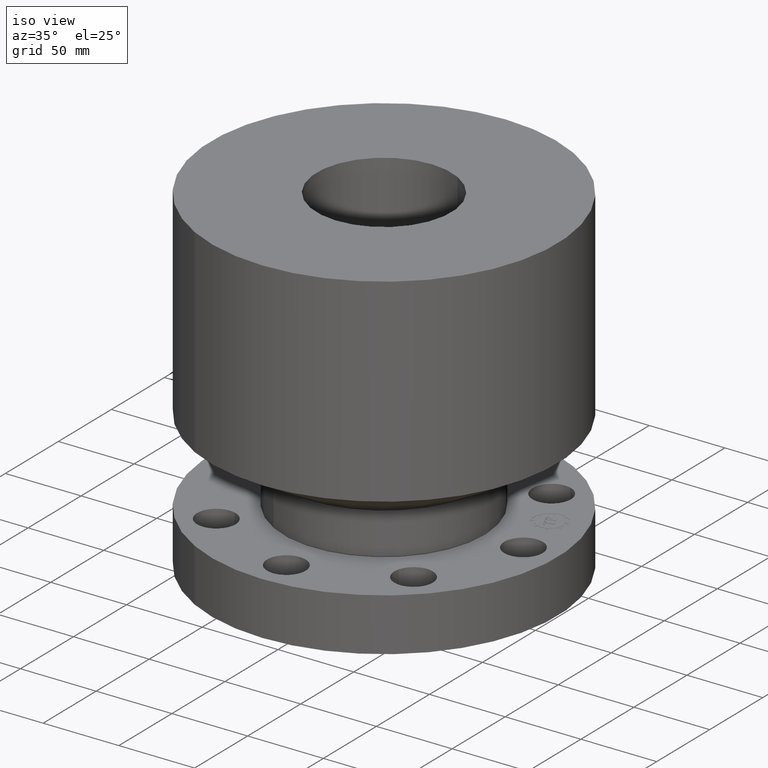
[diagram: clean part render]
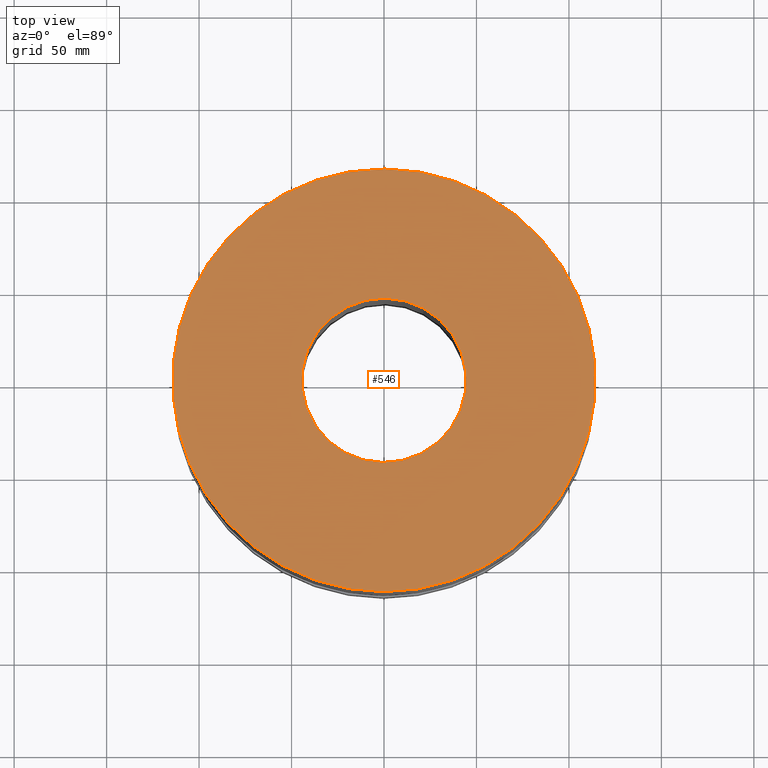
[diagram: tour spotlight — one face highlighted and labeled with its STEP entity id]
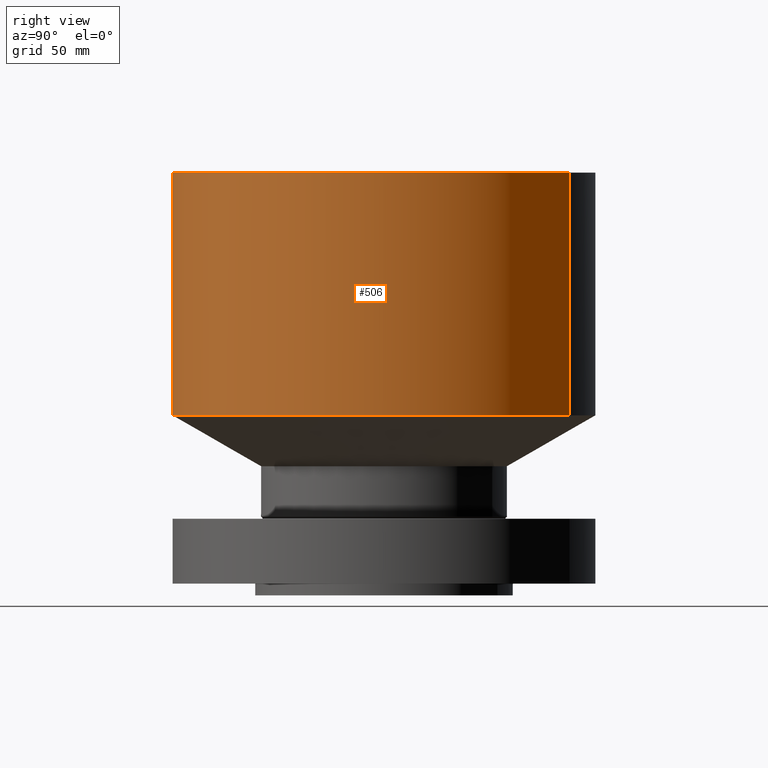
[diagram: tour spotlight — one face highlighted and labeled with its STEP entity id]
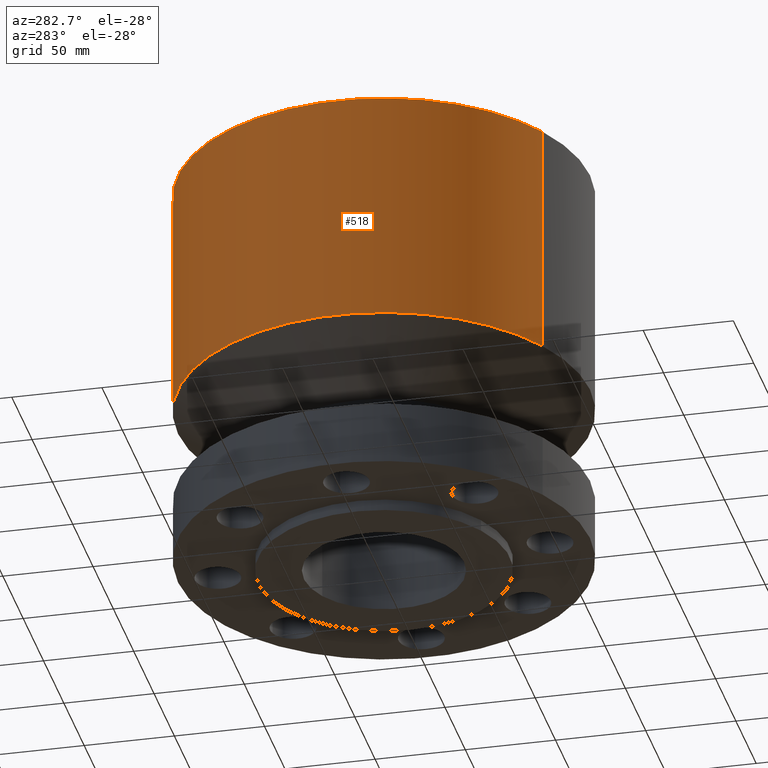
[diagram: tour spotlight — one face highlighted and labeled with its STEP entity id]
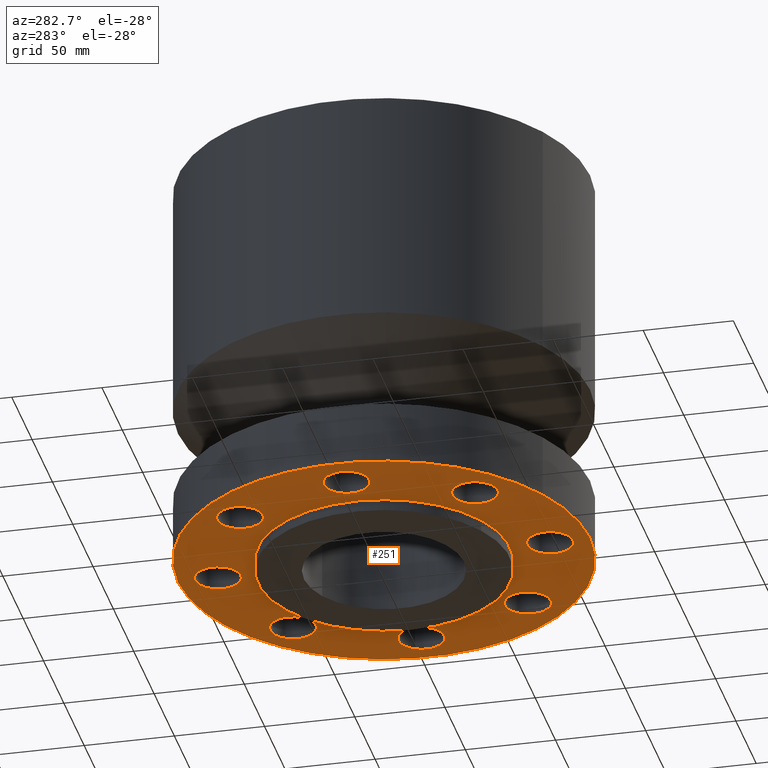
[diagram: tour spotlight — one face highlighted and labeled with its STEP entity id]
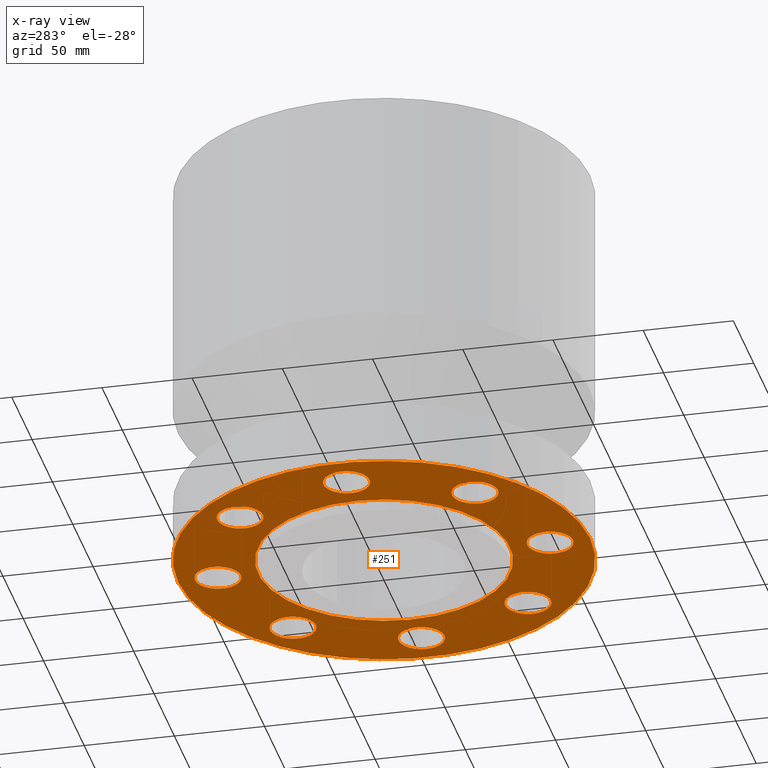
[diagram: x-ray of the same camera — body ghosted, this tour face saturated]
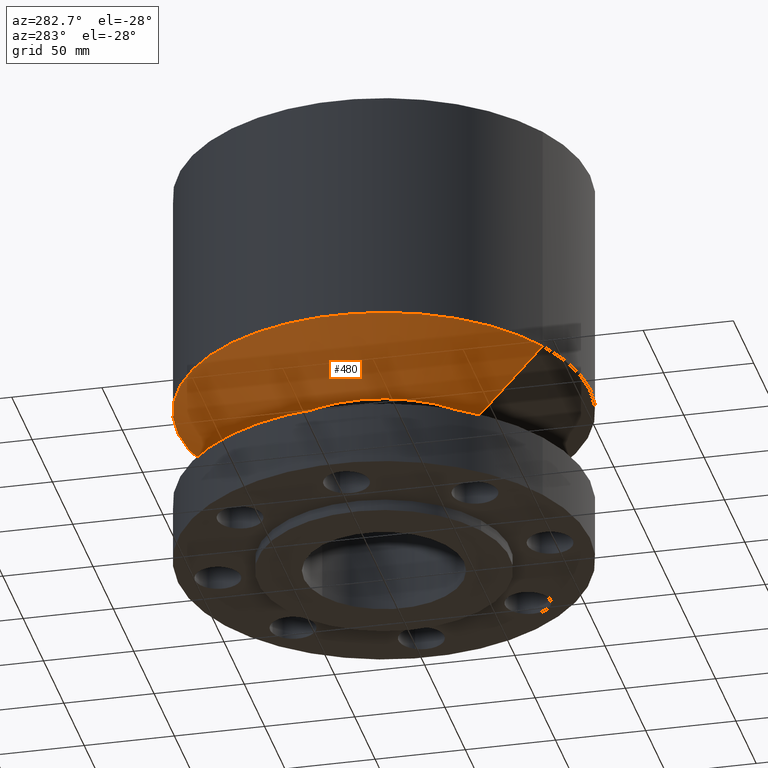
[diagram: tour spotlight — one face highlighted and labeled with its STEP entity id]
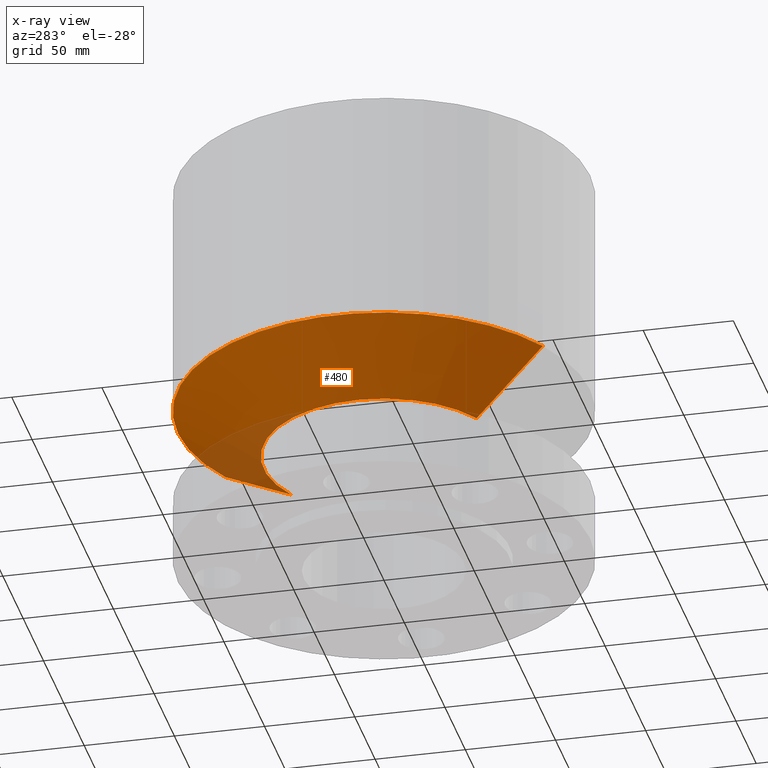
[diagram: x-ray of the same camera — body ghosted, this tour face saturated]
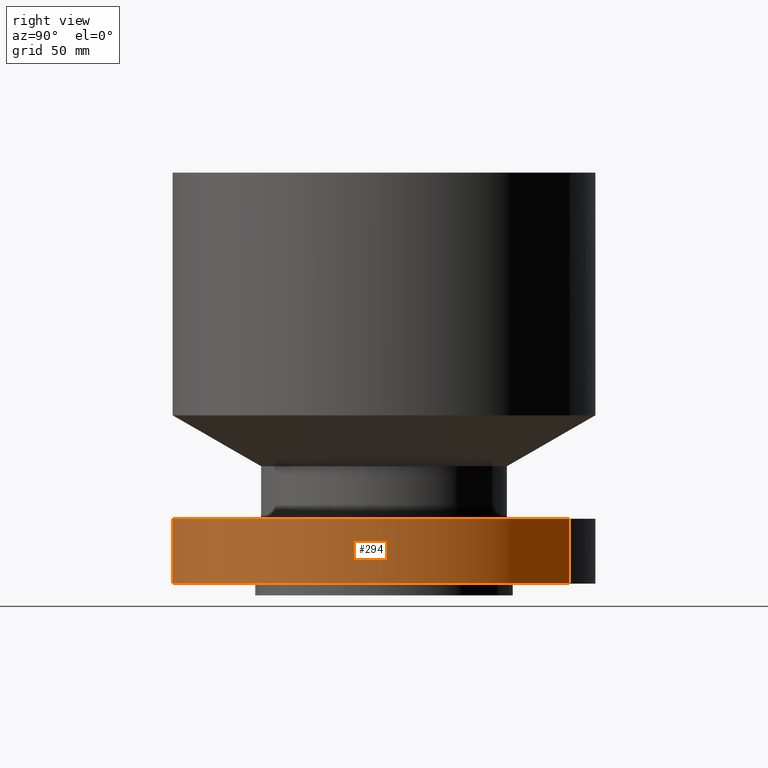
[diagram: tour spotlight — one face highlighted and labeled with its STEP entity id]
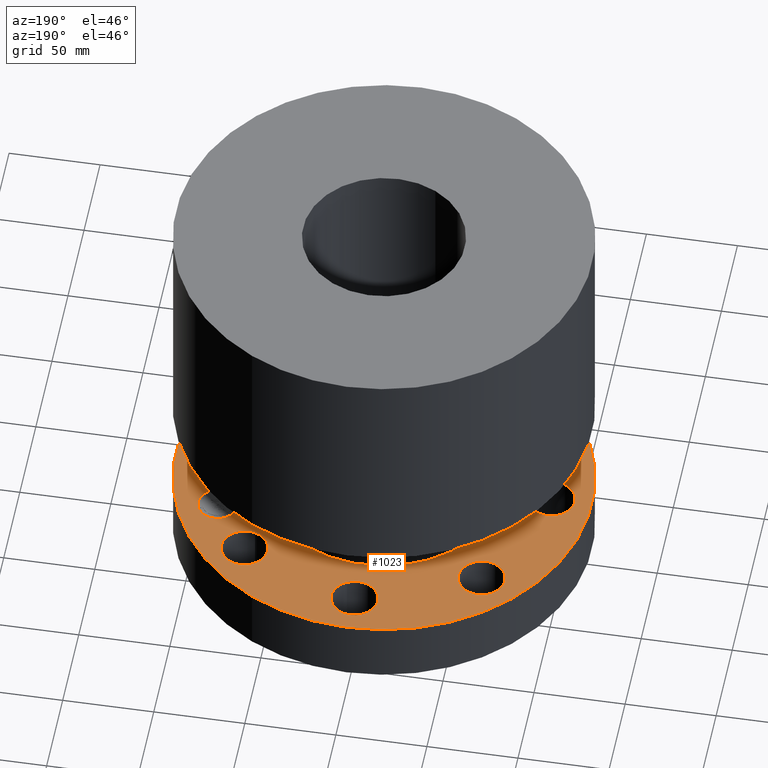
[diagram: tour spotlight — one face highlighted and labeled with its STEP entity id]
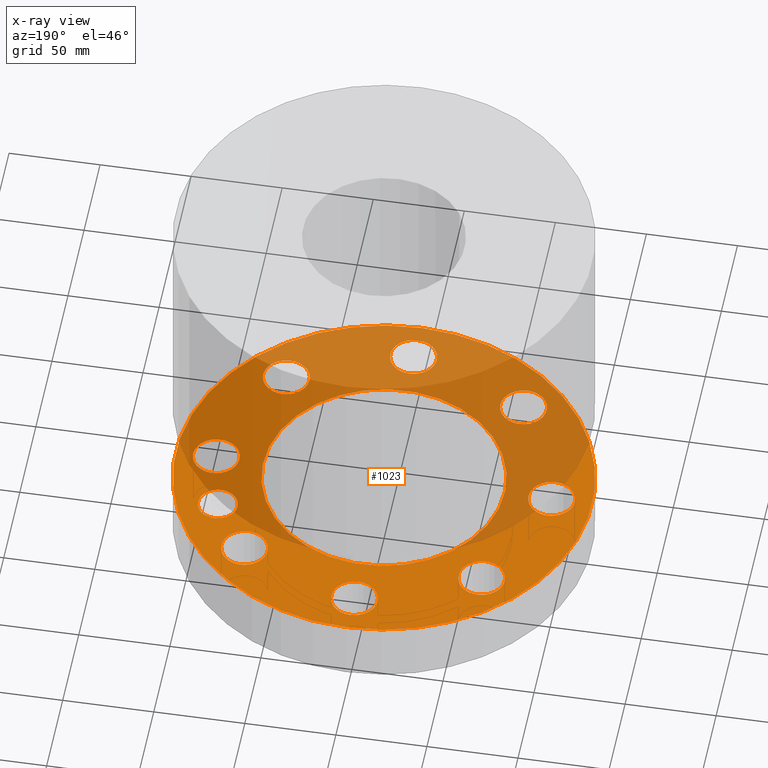
[diagram: x-ray of the same camera — body ghosted, this tour face saturated]
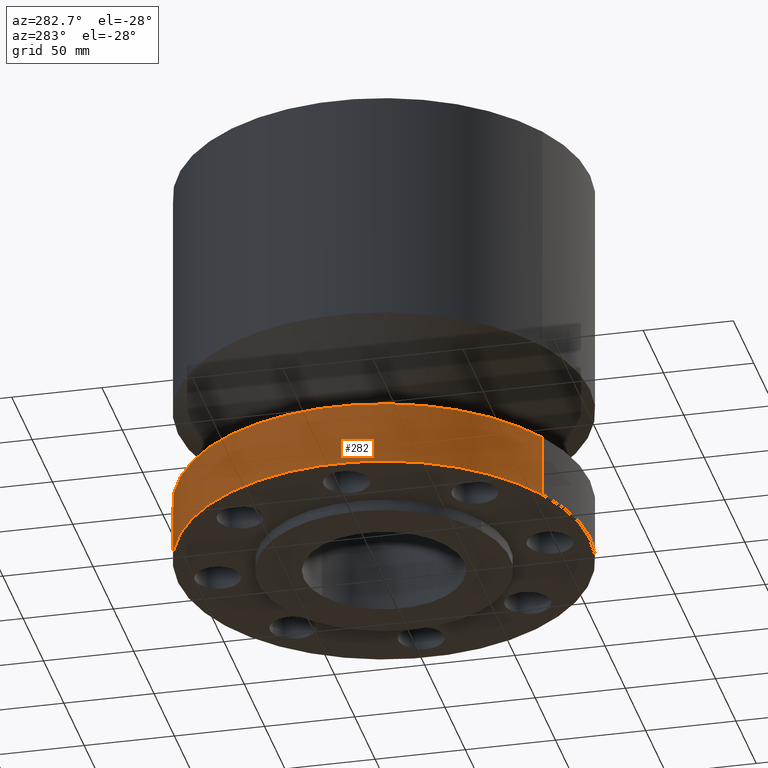
[diagram: tour spotlight — one face highlighted and labeled with its STEP entity id]
A machine part: a face-by-face anatomy tour. The part has 421 B-rep faces; the first image is the clean iso view, then the 8 largest visible faces are spotlighted one at a time (largest first), each with its STEP entity span.

Face 1 — top view, entity #546. In plain terms, the highlighted planar face has unit normal (0, 0, -1).
Definition (entity closure, byte-faithful):
#490=AXIS2_PLACEMENT_3D('Circle Axis2P3D',#488,#489,$) ;
#509=AXIS2_PLACEMENT_3D('Circle Axis2P3D',#507,#508,$) ;
#522=AXIS2_PLACEMENT_3D('Plane Axis2P3D',#519,#520,#521) ;
#530=AXIS2_PLACEMENT_3D('Circle Axis2P3D',#528,#529,$) ;
#539=AXIS2_PLACEMENT_3D('Circle Axis2P3D',#537,#538,$) ;
#485=CARTESIAN_POINT('Vertex',(2.15741492373,3.94912152852,8.75000000003)) ;
#488=CARTESIAN_POINT('Axis2P3D Location',(0.,0.,8.75000000003)) ;
#492=CARTESIAN_POINT('Vertex',(-2.15741492373,-3.94912152852,8.75000000003)) ;
#507=CARTESIAN_POINT('Axis2P3D Location',(0.,0.,8.75000000003)) ;
#519=CARTESIAN_POINT('Axis2P3D Location',(0.,4.50000000002,8.75000000003)) ;
#528=CARTESIAN_POINT('Axis2P3D Location',(0.,0.,8.75000000003)) ;
#532=CARTESIAN_POINT('Vertex',(-0.838994692561,-1.53576948331,8.75000000003)) ;
#534=CARTESIAN_POINT('Vertex',(0.838994692561,1.53576948331,8.75000000003)) ;
#537=CARTESIAN_POINT('Axis2P3D Location',(0.,0.,8.75000000003)) ;
#489=DIRECTION('Axis2P3D Direction',(0.,0.,-0.0393700787402)) ;
#508=DIRECTION('Axis2P3D Direction',(0.,0.,-0.0393700787402)) ;
#520=DIRECTION('Axis2P3D Direction',(0.,0.,-0.0393700787402)) ;
#521=DIRECTION('Axis2P3D XDirection',(0.0393700787402,0.,0.)) ;
#529=DIRECTION('Axis2P3D Direction',(0.,0.,-0.0393700787402)) ;
#538=DIRECTION('Axis2P3D Direction',(0.,0.,-0.0393700787402)) ;
#525=ORIENTED_EDGE('',*,*,#494,.F.) ;
#526=ORIENTED_EDGE('',*,*,#511,.F.) ;
#543=ORIENTED_EDGE('',*,*,#536,.T.) ;
#544=ORIENTED_EDGE('',*,*,#541,.T.) ;
#545=FACE_BOUND('',#542,.T.) ;
#546=ADVANCED_FACE('PartBody',(#527,#545),#523,.F.) ;
#491=CIRCLE('generated circle',#490,4.50000000002) ;
#510=CIRCLE('generated circle',#509,4.50000000002) ;
#531=CIRCLE('generated circle',#530,1.75000000001) ;
#540=CIRCLE('generated circle',#539,1.75000000001) ;
#494=EDGE_CURVE('',#486,#493,#491,.T.) ;
#511=EDGE_CURVE('',#493,#486,#510,.T.) ;
#536=EDGE_CURVE('',#533,#535,#531,.T.) ;
#541=EDGE_CURVE('',#535,#533,#540,.T.) ;
#524=EDGE_LOOP('',(#525,#526)) ;
#542=EDGE_LOOP('',(#543,#544)) ;
#527=FACE_OUTER_BOUND('',#524,.T.) ;
#523=PLANE('',#522) ;
#486=VERTEX_POINT('',#485) ;
#493=VERTEX_POINT('',#492) ;
#533=VERTEX_POINT('',#532) ;
#535=VERTEX_POINT('',#534) ;

Face 2 — right view, entity #506. In plain terms, the highlighted cylindrical surface (partial cylindrical patch) has radius 114.3 mm, axis along (0, 0, -1).
Definition (entity closure, byte-faithful):
#255=AXIS2_PLACEMENT_3D('Cylinder Axis2P3D',#252,#253,#254) ;
#452=AXIS2_PLACEMENT_3D('Circle Axis2P3D',#450,#451,$) ;
#490=AXIS2_PLACEMENT_3D('Circle Axis2P3D',#488,#489,$) ;
#252=CARTESIAN_POINT('Axis2P3D Location',(0.,0.,4.25000000002)) ;
#447=CARTESIAN_POINT('Vertex',(2.15741492373,3.94912152852,3.58253175474)) ;
#450=CARTESIAN_POINT('Axis2P3D Location',(0.,0.,3.58253175474)) ;
#454=CARTESIAN_POINT('Vertex',(-2.15741492373,-3.94912152852,3.58253175474)) ;
#481=CARTESIAN_POINT('Line Origine',(2.15741492373,3.94912152852,6.16626587739)) ;
#485=CARTESIAN_POINT('Vertex',(2.15741492373,3.94912152852,8.75000000003)) ;
#488=CARTESIAN_POINT('Axis2P3D Location',(0.,0.,8.75000000003)) ;
#492=CARTESIAN_POINT('Vertex',(-2.15741492373,-3.94912152852,8.75000000003)) ;
#495=CARTESIAN_POINT('Line Origine',(-2.15741492373,-3.94912152852,6.16626587739)) ;
#253=DIRECTION('Axis2P3D Direction',(0.,0.,-0.0393700787402)) ;
#254=DIRECTION('Axis2P3D XDirection',(-0.0188750212049,-0.0345504945626,0.)) ;
#451=DIRECTION('Axis2P3D Direction',(-0.,0.,0.0393700787402)) ;
#482=DIRECTION('Vector Direction',(0.,0.,-0.0393700787402)) ;
#489=DIRECTION('Axis2P3D Direction',(0.,0.,-0.0393700787402)) ;
#496=DIRECTION('Vector Direction',(0.,0.,-0.0393700787402)) ;
#483=VECTOR('Line Direction',#482,0.0393700787402) ;
#497=VECTOR('Line Direction',#496,0.0393700787402) ;
#501=ORIENTED_EDGE('',*,*,#456,.F.) ;
#502=ORIENTED_EDGE('',*,*,#487,.T.) ;
#503=ORIENTED_EDGE('',*,*,#494,.T.) ;
#504=ORIENTED_EDGE('',*,*,#499,.F.) ;
#506=ADVANCED_FACE('PartBody',(#505),#256,.T.) ;
#453=CIRCLE('generated circle',#452,4.50000000002) ;
#491=CIRCLE('generated circle',#490,4.50000000002) ;
#256=CYLINDRICAL_SURFACE('generated cylinder',#255,4.50000000002) ;
#456=EDGE_CURVE('',#448,#455,#453,.F.) ;
#487=EDGE_CURVE('',#448,#486,#484,.F.) ;
#494=EDGE_CURVE('',#486,#493,#491,.T.) ;
#499=EDGE_CURVE('',#455,#493,#498,.F.) ;
#500=EDGE_LOOP('',(#501,#502,#503,#504)) ;
#505=FACE_OUTER_BOUND('',#500,.T.) ;
#484=LINE('Line',#481,#483) ;
#498=LINE('Line',#495,#497) ;
#448=VERTEX_POINT('',#447) ;
#455=VERTEX_POINT('',#454) ;
#486=VERTEX_POINT('',#485) ;
#493=VERTEX_POINT('',#492) ;

Face 3 — auxiliary view, entity #518. In plain terms, the highlighted cylindrical surface (partial cylindrical patch) has radius 114.3 mm, axis along (0, 0, -1).
Definition (entity closure, byte-faithful):
#255=AXIS2_PLACEMENT_3D('Cylinder Axis2P3D',#252,#253,#254) ;
#471=AXIS2_PLACEMENT_3D('Circle Axis2P3D',#469,#470,$) ;
#509=AXIS2_PLACEMENT_3D('Circle Axis2P3D',#507,#508,$) ;
#252=CARTESIAN_POINT('Axis2P3D Location',(0.,0.,4.25000000002)) ;
#447=CARTESIAN_POINT('Vertex',(2.15741492373,3.94912152852,3.58253175474)) ;
#454=CARTESIAN_POINT('Vertex',(-2.15741492373,-3.94912152852,3.58253175474)) ;
#469=CARTESIAN_POINT('Axis2P3D Location',(0.,0.,3.58253175474)) ;
#481=CARTESIAN_POINT('Line Origine',(2.15741492373,3.94912152852,6.16626587739)) ;
#485=CARTESIAN_POINT('Vertex',(2.15741492373,3.94912152852,8.75000000003)) ;
#492=CARTESIAN_POINT('Vertex',(-2.15741492373,-3.94912152852,8.75000000003)) ;
#495=CARTESIAN_POINT('Line Origine',(-2.15741492373,-3.94912152852,6.16626587739)) ;
#507=CARTESIAN_POINT('Axis2P3D Location',(0.,0.,8.75000000003)) ;
#253=DIRECTION('Axis2P3D Direction',(0.,0.,-0.0393700787402)) ;
#254=DIRECTION('Axis2P3D XDirection',(-0.0188750212049,-0.0345504945626,0.)) ;
#470=DIRECTION('Axis2P3D Direction',(-0.,0.,0.0393700787402)) ;
#482=DIRECTION('Vector Direction',(0.,0.,-0.0393700787402)) ;
#496=DIRECTION('Vector Direction',(0.,0.,-0.0393700787402)) ;
#508=DIRECTION('Axis2P3D Direction',(0.,0.,-0.0393700787402)) ;
#483=VECTOR('Line Direction',#482,0.0393700787402) ;
#497=VECTOR('Line Direction',#496,0.0393700787402) ;
#513=ORIENTED_EDGE('',*,*,#473,.F.) ;
#514=ORIENTED_EDGE('',*,*,#499,.T.) ;
#515=ORIENTED_EDGE('',*,*,#511,.T.) ;
#516=ORIENTED_EDGE('',*,*,#487,.F.) ;
#518=ADVANCED_FACE('PartBody',(#517),#256,.T.) ;
#472=CIRCLE('generated circle',#471,4.50000000002) ;
#510=CIRCLE('generated circle',#509,4.50000000002) ;
#256=CYLINDRICAL_SURFACE('generated cylinder',#255,4.50000000002) ;
#473=EDGE_CURVE('',#455,#448,#472,.F.) ;
#487=EDGE_CURVE('',#448,#486,#484,.F.) ;
#499=EDGE_CURVE('',#455,#493,#498,.F.) ;
#511=EDGE_CURVE('',#493,#486,#510,.T.) ;
#512=EDGE_LOOP('',(#513,#514,#515,#516)) ;
#517=FACE_OUTER_BOUND('',#512,.T.) ;
#484=LINE('Line',#481,#483) ;
#498=LINE('Line',#495,#497) ;
#448=VERTEX_POINT('',#447) ;
#455=VERTEX_POINT('',#454) ;
#486=VERTEX_POINT('',#485) ;
#493=VERTEX_POINT('',#492) ;

Face 4 — auxiliary view, entity #251. An x-ray twin of the same camera follows (body ghosted, this face saturated) — the face is partly hidden behind the body. In plain terms, the highlighted planar face has unit normal (0, 0, -1).
Definition (entity closure, byte-faithful):
#51=AXIS2_PLACEMENT_3D('Circle Axis2P3D',#49,#50,$) ;
#78=AXIS2_PLACEMENT_3D('Plane Axis2P3D',#75,#76,#77) ;
#82=AXIS2_PLACEMENT_3D('Circle Axis2P3D',#80,#81,$) ;
#91=AXIS2_PLACEMENT_3D('Circle Axis2P3D',#89,#90,$) ;
#100=AXIS2_PLACEMENT_3D('Circle Axis2P3D',#98,#99,$) ;
#109=AXIS2_PLACEMENT_3D('Circle Axis2P3D',#107,#108,$) ;
#118=AXIS2_PLACEMENT_3D('Circle Axis2P3D',#116,#117,$) ;
#127=AXIS2_PLACEMENT_3D('Circle Axis2P3D',#125,#126,$) ;
#136=AXIS2_PLACEMENT_3D('Circle Axis2P3D',#134,#135,$) ;
#145=AXIS2_PLACEMENT_3D('Circle Axis2P3D',#143,#144,$) ;
#154=AXIS2_PLACEMENT_3D('Circle Axis2P3D',#152,#153,$) ;
#163=AXIS2_PLACEMENT_3D('Circle Axis2P3D',#161,#162,$) ;
#172=AXIS2_PLACEMENT_3D('Circle Axis2P3D',#170,#171,$) ;
#181=AXIS2_PLACEMENT_3D('Circle Axis2P3D',#179,#180,$) ;
#190=AXIS2_PLACEMENT_3D('Circle Axis2P3D',#188,#189,$) ;
#199=AXIS2_PLACEMENT_3D('Circle Axis2P3D',#197,#198,$) ;
#208=AXIS2_PLACEMENT_3D('Circle Axis2P3D',#206,#207,$) ;
#217=AXIS2_PLACEMENT_3D('Circle Axis2P3D',#215,#216,$) ;
#226=AXIS2_PLACEMENT_3D('Circle Axis2P3D',#224,#225,$) ;
#235=AXIS2_PLACEMENT_3D('Circle Axis2P3D',#233,#234,$) ;
#244=AXIS2_PLACEMENT_3D('Circle Axis2P3D',#242,#243,$) ;
#46=CARTESIAN_POINT('Vertex',(4.06379128096,0.239712769303,2.2401153548E-016)) ;
#49=CARTESIAN_POINT('Axis2P3D Location',(3.62500000001,0.,0.)) ;
#53=CARTESIAN_POINT('Vertex',(3.18620871907,-0.239712769303,2.2401153548E-016)) ;
#75=CARTESIAN_POINT('Axis2P3D Location',(0.,2.75000000001,0.)) ;
#80=CARTESIAN_POINT('Axis2P3D Location',(0.,0.,0.)) ;
#84=CARTESIAN_POINT('Vertex',(-2.15741492373,-3.94912152852,5.59482469102E-016)) ;
#86=CARTESIAN_POINT('Vertex',(2.15741492373,3.94912152852,5.59482469102E-016)) ;
#89=CARTESIAN_POINT('Axis2P3D Location',(0.,0.,0.)) ;
#98=CARTESIAN_POINT('Axis2P3D Location',(3.62500000001,0.,0.)) ;
#107=CARTESIAN_POINT('Axis2P3D Location',(0.,0.,0.)) ;
#111=CARTESIAN_POINT('Vertex',(1.31842023117,2.41335204521,5.59482469102E-016)) ;
#113=CARTESIAN_POINT('Vertex',(-1.31842023117,-2.41335204521,5.59482469102E-016)) ;
#116=CARTESIAN_POINT('Axis2P3D Location',(0.,0.,0.)) ;
#125=CARTESIAN_POINT('Axis2P3D Location',(2.56326208181,-2.56326208181,0.)) ;
#129=CARTESIAN_POINT('Vertex',(3.04303689681,-2.70403184738,0.)) ;
#131=CARTESIAN_POINT('Vertex',(2.08348726682,-2.42249231624,0.)) ;
#134=CARTESIAN_POINT('Axis2P3D Location',(2.56326208181,-2.56326208181,0.)) ;
#143=CARTESIAN_POINT('Axis2P3D Location',(6.99353086378E-017,-3.62500000001,0.)) ;
#147=CARTESIAN_POINT('Vertex',(0.239712769303,-4.06379128096,0.)) ;
#149=CARTESIAN_POINT('Vertex',(-0.239712769303,-3.18620871907,0.)) ;
#152=CARTESIAN_POINT('Axis2P3D Location',(6.99353086378E-016,-3.62500000001,0.)) ;
#161=CARTESIAN_POINT('Axis2P3D Location',(-2.56326208181,-2.56326208181,0.)) ;
#165=CARTESIAN_POINT('Vertex',(-2.70403184738,-3.04303689681,0.)) ;
#167=CARTESIAN_POINT('Vertex',(-2.42249231624,-2.08348726682,0.)) ;
#170=CARTESIAN_POINT('Axis2P3D Location',(-2.56326208181,-2.56326208181,0.)) ;
#179=CARTESIAN_POINT('Axis2P3D Location',(-3.62500000001,0.,0.)) ;
#183=CARTESIAN_POINT('Vertex',(-4.06379128096,-0.239712769303,0.)) ;
#185=CARTESIAN_POINT('Vertex',(-3.18620871907,0.239712769303,0.)) ;
#188=CARTESIAN_POINT('Axis2P3D Location',(-3.62500000001,-5.59482469102E-016,0.)) ;
#197=CARTESIAN_POINT('Axis2P3D Location',(-2.56326208181,2.56326208181,0.)) ;
#201=CARTESIAN_POINT('Vertex',(-3.04303689681,2.70403184738,0.)) ;
#203=CARTESIAN_POINT('Vertex',(-2.08348726682,2.42249231624,0.)) ;
#206=CARTESIAN_POINT('Axis2P3D Location',(-2.56326208181,2.56326208181,0.)) ;
#215=CARTESIAN_POINT('Axis2P3D Location',(-8.39223703654E-016,3.62500000001,0.)) ;
#219=CARTESIAN_POINT('Vertex',(-0.239712769303,4.06379128096,0.)) ;
#221=CARTESIAN_POINT('Vertex',(0.239712769303,3.18620871907,0.)) ;
#224=CARTESIAN_POINT('Axis2P3D Location',(-7.69288395016E-016,3.62500000001,0.)) ;
#233=CARTESIAN_POINT('Axis2P3D Location',(2.56326208181,2.56326208181,0.)) ;
#237=CARTESIAN_POINT('Vertex',(2.70403184738,3.04303689681,0.)) ;
#239=CARTESIAN_POINT('Vertex',(2.42249231624,2.08348726682,0.)) ;
#242=CARTESIAN_POINT('Axis2P3D Location',(2.56326208181,2.56326208181,0.)) ;
#50=DIRECTION('Axis2P3D Direction',(0.,-0.,0.0393700787402)) ;
#76=DIRECTION('Axis2P3D Direction',(0.,0.,-0.0393700787402)) ;
#77=DIRECTION('Axis2P3D XDirection',(0.0393700787402,0.,0.)) ;
#81=DIRECTION('Axis2P3D Direction',(0.,0.,-0.0393700787402)) ;
#90=DIRECTION('Axis2P3D Direction',(0.,0.,-0.0393700787402)) ;
#99=DIRECTION('Axis2P3D Direction',(0.,0.,-0.0393700787402)) ;
#108=DIRECTION('Axis2P3D Direction',(0.,0.,-0.0393700787402)) ;
#117=DIRECTION('Axis2P3D Direction',(0.,0.,-0.0393700787402)) ;
#126=DIRECTION('Axis2P3D Direction',(0.,0.,-0.0393700787402)) ;
#135=DIRECTION('Axis2P3D Direction',(0.,0.,-0.0393700787402)) ;
#144=DIRECTION('Axis2P3D Direction',(0.,0.,-0.0393700787402)) ;
#153=DIRECTION('Axis2P3D Direction',(0.,0.,-0.0393700787402)) ;
#162=DIRECTION('Axis2P3D Direction',(0.,0.,-0.0393700787402)) ;
#171=DIRECTION('Axis2P3D Direction',(0.,0.,-0.0393700787402)) ;
#180=DIRECTION('Axis2P3D Direction',(0.,0.,-0.0393700787402)) ;
#189=DIRECTION('Axis2P3D Direction',(0.,0.,-0.0393700787402)) ;
#198=DIRECTION('Axis2P3D Direction',(0.,0.,-0.0393700787402)) ;
#207=DIRECTION('Axis2P3D Direction',(0.,0.,-0.0393700787402)) ;
#216=DIRECTION('Axis2P3D Direction',(0.,0.,-0.0393700787402)) ;
#225=DIRECTION('Axis2P3D Direction',(0.,0.,-0.0393700787402)) ;
#234=DIRECTION('Axis2P3D Direction',(0.,0.,-0.0393700787402)) ;
#243=DIRECTION('Axis2P3D Direction',(0.,0.,-0.0393700787402)) ;
#95=ORIENTED_EDGE('',*,*,#88,.T.) ;
#96=ORIENTED_EDGE('',*,*,#93,.T.) ;
#104=ORIENTED_EDGE('',*,*,#102,.F.) ;
#105=ORIENTED_EDGE('',*,*,#55,.F.) ;
#122=ORIENTED_EDGE('',*,*,#115,.F.) ;
#123=ORIENTED_EDGE('',*,*,#120,.F.) ;
#140=ORIENTED_EDGE('',*,*,#133,.F.) ;
#141=ORIENTED_EDGE('',*,*,#138,.F.) ;
#158=ORIENTED_EDGE('',*,*,#151,.F.) ;
#159=ORIENTED_EDGE('',*,*,#156,.F.) ;
#176=ORIENTED_EDGE('',*,*,#169,.F.) ;
#177=ORIENTED_EDGE('',*,*,#174,.F.) ;
#194=ORIENTED_EDGE('',*,*,#187,.F.) ;
#195=ORIENTED_EDGE('',*,*,#192,.F.) ;
#212=ORIENTED_EDGE('',*,*,#205,.F.) ;
#213=ORIENTED_EDGE('',*,*,#210,.F.) ;
#230=ORIENTED_EDGE('',*,*,#223,.F.) ;
#231=ORIENTED_EDGE('',*,*,#228,.F.) ;
#248=ORIENTED_EDGE('',*,*,#241,.F.) ;
#249=ORIENTED_EDGE('',*,*,#246,.F.) ;
#106=FACE_BOUND('',#103,.T.) ;
#124=FACE_BOUND('',#121,.T.) ;
#142=FACE_BOUND('',#139,.T.) ;
#160=FACE_BOUND('',#157,.T.) ;
#178=FACE_BOUND('',#175,.T.) ;
#196=FACE_BOUND('',#193,.T.) ;
#214=FACE_BOUND('',#211,.T.) ;
#232=FACE_BOUND('',#229,.T.) ;
#250=FACE_BOUND('',#247,.T.) ;
#251=ADVANCED_FACE('PartBody',(#97,#106,#124,#142,#160,#178,#196,#214,#232,#250),#79,.T.) ;
#52=CIRCLE('generated circle',#51,0.500000000002) ;
#83=CIRCLE('generated circle',#82,4.50000000002) ;
#92=CIRCLE('generated circle',#91,4.50000000002) ;
#101=CIRCLE('generated circle',#100,0.500000000002) ;
#110=CIRCLE('generated circle',#109,2.75000000001) ;
#119=CIRCLE('generated circle',#118,2.75000000001) ;
#128=CIRCLE('generated circle',#127,0.500000000002) ;
#137=CIRCLE('generated circle',#136,0.500000000002) ;
#146=CIRCLE('generated circle',#145,0.500000000002) ;
#155=CIRCLE('generated circle',#154,0.500000000002) ;
#164=CIRCLE('generated circle',#163,0.500000000002) ;
#173=CIRCLE('generated circle',#172,0.500000000002) ;
#182=CIRCLE('generated circle',#181,0.500000000002) ;
#191=CIRCLE('generated circle',#190,0.500000000002) ;
#200=CIRCLE('generated circle',#199,0.500000000002) ;
#209=CIRCLE('generated circle',#208,0.500000000002) ;
#218=CIRCLE('generated circle',#217,0.500000000002) ;
#227=CIRCLE('generated circle',#226,0.500000000002) ;
#236=CIRCLE('generated circle',#235,0.500000000002) ;
#245=CIRCLE('generated circle',#244,0.500000000002) ;
#55=EDGE_CURVE('',#47,#54,#52,.F.) ;
#88=EDGE_CURVE('',#85,#87,#83,.T.) ;
#93=EDGE_CURVE('',#87,#85,#92,.T.) ;
#102=EDGE_CURVE('',#54,#47,#101,.T.) ;
#115=EDGE_CURVE('',#112,#114,#110,.T.) ;
#120=EDGE_CURVE('',#114,#112,#119,.T.) ;
#133=EDGE_CURVE('',#130,#132,#128,.T.) ;
#138=EDGE_CURVE('',#132,#130,#137,.T.) ;
#151=EDGE_CURVE('',#148,#150,#146,.T.) ;
#156=EDGE_CURVE('',#150,#148,#155,.T.) ;
#169=EDGE_CURVE('',#166,#168,#164,.T.) ;
#174=EDGE_CURVE('',#168,#166,#173,.T.) ;
#187=EDGE_CURVE('',#184,#186,#182,.T.) ;
#192=EDGE_CURVE('',#186,#184,#191,.T.) ;
#205=EDGE_CURVE('',#202,#204,#200,.T.) ;
#210=EDGE_CURVE('',#204,#202,#209,.T.) ;
#223=EDGE_CURVE('',#220,#222,#218,.T.) ;
#228=EDGE_CURVE('',#222,#220,#227,.T.) ;
#241=EDGE_CURVE('',#238,#240,#236,.T.) ;
#246=EDGE_CURVE('',#240,#238,#245,.T.) ;
#94=EDGE_LOOP('',(#95,#96)) ;
#103=EDGE_LOOP('',(#104,#105)) ;
#121=EDGE_LOOP('',(#122,#123)) ;
#139=EDGE_LOOP('',(#140,#141)) ;
#157=EDGE_LOOP('',(#158,#159)) ;
#175=EDGE_LOOP('',(#176,#177)) ;
#193=EDGE_LOOP('',(#194,#195)) ;
#211=EDGE_LOOP('',(#212,#213)) ;
#229=EDGE_LOOP('',(#230,#231)) ;
#247=EDGE_LOOP('',(#248,#249)) ;
#97=FACE_OUTER_BOUND('',#94,.T.) ;
#79=PLANE('',#78) ;
#47=VERTEX_POINT('',#46) ;
#54=VERTEX_POINT('',#53) ;
#85=VERTEX_POINT('',#84) ;
#87=VERTEX_POINT('',#86) ;
#112=VERTEX_POINT('',#111) ;
#114=VERTEX_POINT('',#113) ;
#130=VERTEX_POINT('',#129) ;
#132=VERTEX_POINT('',#131) ;
#148=VERTEX_POINT('',#147) ;
#150=VERTEX_POINT('',#149) ;
#166=VERTEX_POINT('',#165) ;
#168=VERTEX_POINT('',#167) ;
#184=VERTEX_POINT('',#183) ;
#186=VERTEX_POINT('',#185) ;
#202=VERTEX_POINT('',#201) ;
#204=VERTEX_POINT('',#203) ;
#220=VERTEX_POINT('',#219) ;
#222=VERTEX_POINT('',#221) ;
#238=VERTEX_POINT('',#237) ;
#240=VERTEX_POINT('',#239) ;

Face 5 — auxiliary view, entity #480. An x-ray twin of the same camera follows (body ghosted, this face saturated) — the face is partly hidden behind the body. In plain terms, the highlighted conical surface has half-angle 60 deg.
Definition (entity closure, byte-faithful):
#428=AXIS2_PLACEMENT_3D('Circle Axis2P3D',#426,#427,$) ;
#441=AXIS2_PLACEMENT_3D('Cone Axis2P3D',#438,#439,#440) ;
#471=AXIS2_PLACEMENT_3D('Circle Axis2P3D',#469,#470,$) ;
#404=CARTESIAN_POINT('Vertex',(1.25849203884,2.30365422497,2.50000000001)) ;
#411=CARTESIAN_POINT('Vertex',(-1.25849203884,-2.30365422497,2.50000000001)) ;
#426=CARTESIAN_POINT('Axis2P3D Location',(0.,0.,2.50000000001)) ;
#438=CARTESIAN_POINT('Axis2P3D Location',(0.,0.,2.50000000001)) ;
#443=CARTESIAN_POINT('Line Origine',(1.70795348128,3.12638787675,3.04126587738)) ;
#447=CARTESIAN_POINT('Vertex',(2.15741492373,3.94912152852,3.58253175474)) ;
#454=CARTESIAN_POINT('Vertex',(-2.15741492373,-3.94912152852,3.58253175474)) ;
#457=CARTESIAN_POINT('Line Origine',(-1.70795348128,-3.12638787675,3.04126587738)) ;
#469=CARTESIAN_POINT('Axis2P3D Location',(0.,0.,3.58253175474)) ;
#427=DIRECTION('Axis2P3D Direction',(0.,0.,-0.0393700787402)) ;
#439=DIRECTION('Axis2P3D Direction',(-0.,-0.,0.0393700787402)) ;
#440=DIRECTION('Axis2P3D XDirection',(0.0188750212049,0.0345504945626,0.)) ;
#444=DIRECTION('Vector Direction',(0.0163462478604,0.0299216060045,0.0196850393701)) ;
#458=DIRECTION('Vector Direction',(-0.0163462478604,-0.0299216060045,0.0196850393701)) ;
#470=DIRECTION('Axis2P3D Direction',(-0.,0.,0.0393700787402)) ;
#445=VECTOR('Line Direction',#444,0.0393700787402) ;
#459=VECTOR('Line Direction',#458,0.0393700787402) ;
#475=ORIENTED_EDGE('',*,*,#430,.F.) ;
#476=ORIENTED_EDGE('',*,*,#461,.T.) ;
#477=ORIENTED_EDGE('',*,*,#473,.T.) ;
#478=ORIENTED_EDGE('',*,*,#449,.F.) ;
#480=ADVANCED_FACE('PartBody',(#479),#442,.T.) ;
#429=CIRCLE('generated circle',#428,2.62500000001) ;
#472=CIRCLE('generated circle',#471,4.50000000002) ;
#442=CONICAL_SURFACE('Cone',#441,2.62500000001,1.0471975512) ;
#430=EDGE_CURVE('',#412,#405,#429,.T.) ;
#449=EDGE_CURVE('',#405,#448,#446,.T.) ;
#461=EDGE_CURVE('',#412,#455,#460,.T.) ;
#473=EDGE_CURVE('',#455,#448,#472,.F.) ;
#474=EDGE_LOOP('',(#475,#476,#477,#478)) ;
#479=FACE_OUTER_BOUND('',#474,.T.) ;
#446=LINE('Line',#443,#445) ;
#460=LINE('Line',#457,#459) ;
#405=VERTEX_POINT('',#404) ;
#412=VERTEX_POINT('',#411) ;
#448=VERTEX_POINT('',#447) ;
#455=VERTEX_POINT('',#454) ;

Face 6 — right view, entity #294. In plain terms, the highlighted cylindrical surface (partial cylindrical patch) has radius 114.3 mm, axis along (0, 0, -1).
Definition (entity closure, byte-faithful):
#91=AXIS2_PLACEMENT_3D('Circle Axis2P3D',#89,#90,$) ;
#255=AXIS2_PLACEMENT_3D('Cylinder Axis2P3D',#252,#253,#254) ;
#285=AXIS2_PLACEMENT_3D('Circle Axis2P3D',#283,#284,$) ;
#84=CARTESIAN_POINT('Vertex',(-2.15741492373,-3.94912152852,5.59482469102E-016)) ;
#86=CARTESIAN_POINT('Vertex',(2.15741492373,3.94912152852,5.59482469102E-016)) ;
#89=CARTESIAN_POINT('Axis2P3D Location',(0.,0.,0.)) ;
#252=CARTESIAN_POINT('Axis2P3D Location',(0.,0.,4.25000000002)) ;
#257=CARTESIAN_POINT('Line Origine',(-2.15741492373,-3.94912152852,6.16626587739)) ;
#261=CARTESIAN_POINT('Vertex',(-2.15741492373,-3.94912152852,1.38000000001)) ;
#268=CARTESIAN_POINT('Vertex',(2.15741492373,3.94912152852,1.38000000001)) ;
#271=CARTESIAN_POINT('Line Origine',(2.15741492373,3.94912152852,6.16626587739)) ;
#283=CARTESIAN_POINT('Axis2P3D Location',(0.,0.,1.38000000001)) ;
#90=DIRECTION('Axis2P3D Direction',(0.,0.,-0.0393700787402)) ;
#253=DIRECTION('Axis2P3D Direction',(0.,0.,-0.0393700787402)) ;
#254=DIRECTION('Axis2P3D XDirection',(-0.0188750212049,-0.0345504945626,0.)) ;
#258=DIRECTION('Vector Direction',(0.,0.,-0.0393700787402)) ;
#272=DIRECTION('Vector Direction',(0.,0.,-0.0393700787402)) ;
#284=DIRECTION('Axis2P3D Direction',(0.,0.,-0.0393700787402)) ;
#259=VECTOR('Line Direction',#258,0.0393700787402) ;
#273=VECTOR('Line Direction',#272,0.0393700787402) ;
#289=ORIENTED_EDGE('',*,*,#93,.F.) ;
#290=ORIENTED_EDGE('',*,*,#275,.T.) ;
#291=ORIENTED_EDGE('',*,*,#287,.T.) ;
#292=ORIENTED_EDGE('',*,*,#263,.F.) ;
#294=ADVANCED_FACE('PartBody',(#293),#256,.T.) ;
#92=CIRCLE('generated circle',#91,4.50000000002) ;
#286=CIRCLE('generated circle',#285,4.50000000002) ;
#256=CYLINDRICAL_SURFACE('generated cylinder',#255,4.50000000002) ;
#93=EDGE_CURVE('',#87,#85,#92,.T.) ;
#263=EDGE_CURVE('',#85,#262,#260,.F.) ;
#275=EDGE_CURVE('',#87,#269,#274,.F.) ;
#287=EDGE_CURVE('',#269,#262,#286,.T.) ;
#288=EDGE_LOOP('',(#289,#290,#291,#292)) ;
#293=FACE_OUTER_BOUND('',#288,.T.) ;
#260=LINE('Line',#257,#259) ;
#274=LINE('Line',#271,#273) ;
#85=VERTEX_POINT('',#84) ;
#87=VERTEX_POINT('',#86) ;
#262=VERTEX_POINT('',#261) ;
#269=VERTEX_POINT('',#268) ;

Face 7 — auxiliary view, entity #1023. An x-ray twin of the same camera follows (body ghosted, this face saturated) — the face is partly hidden behind the body. In plain terms, the highlighted planar face has unit normal (0, 0, -1).
Definition (entity closure, byte-faithful):
#65=AXIS2_PLACEMENT_3D('Circle Axis2P3D',#63,#64,$) ;
#266=AXIS2_PLACEMENT_3D('Circle Axis2P3D',#264,#265,$) ;
#285=AXIS2_PLACEMENT_3D('Circle Axis2P3D',#283,#284,$) ;
#302=AXIS2_PLACEMENT_3D('Circle Axis2P3D',#300,#301,$) ;
#337=AXIS2_PLACEMENT_3D('Circle Axis2P3D',#335,#336,$) ;
#649=AXIS2_PLACEMENT_3D('Circle Axis2P3D',#647,#648,$) ;
#680=AXIS2_PLACEMENT_3D('Circle Axis2P3D',#678,#679,$) ;
#692=AXIS2_PLACEMENT_3D('Circle Axis2P3D',#690,#691,$) ;
#723=AXIS2_PLACEMENT_3D('Circle Axis2P3D',#721,#722,$) ;
#735=AXIS2_PLACEMENT_3D('Circle Axis2P3D',#733,#734,$) ;
#766=AXIS2_PLACEMENT_3D('Circle Axis2P3D',#764,#765,$) ;
#778=AXIS2_PLACEMENT_3D('Circle Axis2P3D',#776,#777,$) ;
#809=AXIS2_PLACEMENT_3D('Circle Axis2P3D',#807,#808,$) ;
#821=AXIS2_PLACEMENT_3D('Circle Axis2P3D',#819,#820,$) ;
#852=AXIS2_PLACEMENT_3D('Circle Axis2P3D',#850,#851,$) ;
#864=AXIS2_PLACEMENT_3D('Circle Axis2P3D',#862,#863,$) ;
#895=AXIS2_PLACEMENT_3D('Circle Axis2P3D',#893,#894,$) ;
#907=AXIS2_PLACEMENT_3D('Circle Axis2P3D',#905,#906,$) ;
#938=AXIS2_PLACEMENT_3D('Circle Axis2P3D',#936,#937,$) ;
#950=AXIS2_PLACEMENT_3D('Circle Axis2P3D',#948,#949,$) ;
#963=AXIS2_PLACEMENT_3D('Plane Axis2P3D',#960,#961,#962) ;
#1007=AXIS2_PLACEMENT_3D('Circle Axis2P3D',#1005,#1006,$) ;
#1016=AXIS2_PLACEMENT_3D('Circle Axis2P3D',#1014,#1015,$) ;
#44=CARTESIAN_POINT('Vertex',(4.06379128096,0.239712769303,1.38000000001)) ;
#60=CARTESIAN_POINT('Vertex',(3.18620871907,-0.239712769303,1.38000000001)) ;
#63=CARTESIAN_POINT('Axis2P3D Location',(3.62500000001,0.,1.38000000001)) ;
#261=CARTESIAN_POINT('Vertex',(-2.15741492373,-3.94912152852,1.38000000001)) ;
#264=CARTESIAN_POINT('Axis2P3D Location',(0.,0.,1.38000000001)) ;
#268=CARTESIAN_POINT('Vertex',(2.15741492373,3.94912152852,1.38000000001)) ;
#283=CARTESIAN_POINT('Axis2P3D Location',(0.,0.,1.38000000001)) ;
#300=CARTESIAN_POINT('Axis2P3D Location',(0.,0.,1.38000000001)) ;
#304=CARTESIAN_POINT('Vertex',(1.25130065576,2.29049048654,1.38000000001)) ;
#306=CARTESIAN_POINT('Vertex',(-1.25130065576,-2.29049048654,1.38000000001)) ;
#335=CARTESIAN_POINT('Axis2P3D Location',(0.,0.,1.38000000001)) ;
#647=CARTESIAN_POINT('Axis2P3D Location',(3.62500000001,0.,1.38000000001)) ;
#668=CARTESIAN_POINT('Vertex',(3.04303689681,-2.70403184738,1.38000000001)) ;
#675=CARTESIAN_POINT('Vertex',(2.08348726682,-2.42249231624,1.38000000001)) ;
#678=CARTESIAN_POINT('Axis2P3D Location',(2.56326208181,-2.56326208181,1.38000000001)) ;
#690=CARTESIAN_POINT('Axis2P3D Location',(2.56326208181,-2.56326208181,1.38000000001)) ;
#711=CARTESIAN_POINT('Vertex',(0.239712769303,-4.06379128096,1.38000000001)) ;
#718=CARTESIAN_POINT('Vertex',(-0.239712769303,-3.18620871907,1.38000000001)) ;
#721=CARTESIAN_POINT('Axis2P3D Location',(2.21967232346E-016,-3.62500000001,1.38000000001)) ;
#733=CARTESIAN_POINT('Axis2P3D Location',(2.21967232346E-016,-3.62500000001,1.38000000001)) ;
#754=CARTESIAN_POINT('Vertex',(-2.70403184738,-3.04303689681,1.38000000001)) ;
#761=CARTESIAN_POINT('Vertex',(-2.42249231624,-2.08348726682,1.38000000001)) ;
#764=CARTESIAN_POINT('Axis2P3D Location',(-2.56326208181,-2.56326208181,1.38000000001)) ;
#776=CARTESIAN_POINT('Axis2P3D Location',(-2.56326208181,-2.56326208181,1.38000000001)) ;
#797=CARTESIAN_POINT('Vertex',(-4.06379128096,-0.239712769303,1.38000000001)) ;
#804=CARTESIAN_POINT('Vertex',(-3.18620871907,0.239712769303,1.38000000001)) ;
#807=CARTESIAN_POINT('Axis2P3D Location',(-3.62500000001,-4.43934464693E-016,1.38000000001)) ;
#819=CARTESIAN_POINT('Axis2P3D Location',(-3.62500000001,-4.43934464693E-016,1.38000000001)) ;
#840=CARTESIAN_POINT('Vertex',(-3.04303689681,2.70403184738,1.38000000001)) ;
#847=CARTESIAN_POINT('Vertex',(-2.08348726682,2.42249231624,1.38000000001)) ;
#850=CARTESIAN_POINT('Axis2P3D Location',(-2.56326208181,2.56326208181,1.38000000001)) ;
#862=CARTESIAN_POINT('Axis2P3D Location',(-2.56326208181,2.56326208181,1.38000000001)) ;
#883=CARTESIAN_POINT('Vertex',(-0.239712769303,4.06379128096,1.38000000001)) ;
#890=CARTESIAN_POINT('Vertex',(0.239712769303,3.18620871907,1.38000000001)) ;
#893=CARTESIAN_POINT('Axis2P3D Location',(-6.65901697039E-016,3.62500000001,1.38000000001)) ;
#905=CARTESIAN_POINT('Axis2P3D Location',(-6.65901697039E-016,3.62500000001,1.38000000001)) ;
#926=CARTESIAN_POINT('Vertex',(2.70403184738,3.04303689681,1.38000000001)) ;
#933=CARTESIAN_POINT('Vertex',(2.42249231624,2.08348726682,1.38000000001)) ;
#936=CARTESIAN_POINT('Axis2P3D Location',(2.56326208181,2.56326208181,1.38000000001)) ;
#948=CARTESIAN_POINT('Axis2P3D Location',(2.56326208181,2.56326208181,1.38000000001)) ;
#960=CARTESIAN_POINT('Axis2P3D Location',(0.,4.50000000002,1.38000000001)) ;
#1005=CARTESIAN_POINT('Axis2P3D Location',(3.34906330537,1.38722744233,1.38000000001)) ;
#1009=CARTESIAN_POINT('Vertex',(3.5117037625,0.994578644937,1.38000000001)) ;
#1011=CARTESIAN_POINT('Vertex',(3.18642284824,1.77987623972,1.38000000001)) ;
#1014=CARTESIAN_POINT('Axis2P3D Location',(3.34906330537,1.38722744233,1.38000000001)) ;
#64=DIRECTION('Axis2P3D Direction',(0.,-0.,0.0393700787402)) ;
#265=DIRECTION('Axis2P3D Direction',(0.,0.,-0.0393700787402)) ;
#284=DIRECTION('Axis2P3D Direction',(0.,0.,-0.0393700787402)) ;
#301=DIRECTION('Axis2P3D Direction',(0.,0.,-0.0393700787402)) ;
#336=DIRECTION('Axis2P3D Direction',(0.,0.,-0.0393700787402)) ;
#648=DIRECTION('Axis2P3D Direction',(0.,-0.,0.0393700787402)) ;
#679=DIRECTION('Axis2P3D Direction',(-0.,0.,0.0393700787402)) ;
#691=DIRECTION('Axis2P3D Direction',(-0.,0.,0.0393700787402)) ;
#722=DIRECTION('Axis2P3D Direction',(-0.,0.,0.0393700787402)) ;
#734=DIRECTION('Axis2P3D Direction',(-0.,0.,0.0393700787402)) ;
#765=DIRECTION('Axis2P3D Direction',(0.,0.,0.0393700787402)) ;
#777=DIRECTION('Axis2P3D Direction',(0.,0.,0.0393700787402)) ;
#808=DIRECTION('Axis2P3D Direction',(0.,0.,0.0393700787402)) ;
#820=DIRECTION('Axis2P3D Direction',(0.,0.,0.0393700787402)) ;
#851=DIRECTION('Axis2P3D Direction',(0.,0.,0.0393700787402)) ;
#863=DIRECTION('Axis2P3D Direction',(0.,0.,0.0393700787402)) ;
#894=DIRECTION('Axis2P3D Direction',(0.,0.,0.0393700787402)) ;
#906=DIRECTION('Axis2P3D Direction',(0.,0.,0.0393700787402)) ;
#937=DIRECTION('Axis2P3D Direction',(0.,-0.,0.0393700787402)) ;
#949=DIRECTION('Axis2P3D Direction',(0.,-0.,0.0393700787402)) ;
#961=DIRECTION('Axis2P3D Direction',(0.,0.,-0.0393700787402)) ;
#962=DIRECTION('Axis2P3D XDirection',(0.0393700787402,0.,0.)) ;
#1006=DIRECTION('Axis2P3D Direction',(0.,0.,-0.0393700787402)) ;
#1015=DIRECTION('Axis2P3D Direction',(0.,0.,-0.0393700787402)) ;
#966=ORIENTED_EDGE('',*,*,#287,.F.) ;
#967=ORIENTED_EDGE('',*,*,#270,.F.) ;
#970=ORIENTED_EDGE('',*,*,#67,.T.) ;
#971=ORIENTED_EDGE('',*,*,#651,.T.) ;
#974=ORIENTED_EDGE('',*,*,#339,.T.) ;
#975=ORIENTED_EDGE('',*,*,#308,.T.) ;
#978=ORIENTED_EDGE('',*,*,#694,.T.) ;
#979=ORIENTED_EDGE('',*,*,#682,.T.) ;
#982=ORIENTED_EDGE('',*,*,#737,.T.) ;
#983=ORIENTED_EDGE('',*,*,#725,.T.) ;
#986=ORIENTED_EDGE('',*,*,#780,.T.) ;
#987=ORIENTED_EDGE('',*,*,#768,.T.) ;
#990=ORIENTED_EDGE('',*,*,#823,.T.) ;
#991=ORIENTED_EDGE('',*,*,#811,.T.) ;
#994=ORIENTED_EDGE('',*,*,#866,.T.) ;
#995=ORIENTED_EDGE('',*,*,#854,.T.) ;
#998=ORIENTED_EDGE('',*,*,#909,.T.) ;
#999=ORIENTED_EDGE('',*,*,#897,.T.) ;
#1002=ORIENTED_EDGE('',*,*,#952,.T.) ;
#1003=ORIENTED_EDGE('',*,*,#940,.T.) ;
#1020=ORIENTED_EDGE('',*,*,#1013,.F.) ;
#1021=ORIENTED_EDGE('',*,*,#1018,.F.) ;
#972=FACE_BOUND('',#969,.T.) ;
#976=FACE_BOUND('',#973,.T.) ;
#980=FACE_BOUND('',#977,.T.) ;
#984=FACE_BOUND('',#981,.T.) ;
#988=FACE_BOUND('',#985,.T.) ;
#992=FACE_BOUND('',#989,.T.) ;
#996=FACE_BOUND('',#993,.T.) ;
#1000=FACE_BOUND('',#997,.T.) ;
#1004=FACE_BOUND('',#1001,.T.) ;
#1022=FACE_BOUND('',#1019,.T.) ;
#1023=ADVANCED_FACE('PartBody',(#968,#972,#976,#980,#984,#988,#992,#996,#1000,#1004,#1022),#964,.F.) ;
#66=CIRCLE('generated circle',#65,0.500000000002) ;
#267=CIRCLE('generated circle',#266,4.50000000002) ;
#286=CIRCLE('generated circle',#285,4.50000000002) ;
#303=CIRCLE('generated circle',#302,2.61000000001) ;
#338=CIRCLE('generated circle',#337,2.61000000001) ;
#650=CIRCLE('generated circle',#649,0.500000000002) ;
#681=CIRCLE('generated circle',#680,0.500000000002) ;
#693=CIRCLE('generated circle',#692,0.500000000002) ;
#724=CIRCLE('generated circle',#723,0.500000000002) ;
#736=CIRCLE('generated circle',#735,0.500000000002) ;
#767=CIRCLE('generated circle',#766,0.500000000002) ;
#779=CIRCLE('generated circle',#778,0.500000000002) ;
#810=CIRCLE('generated circle',#809,0.500000000002) ;
#822=CIRCLE('generated circle',#821,0.500000000002) ;
#853=CIRCLE('generated circle',#852,0.500000000002) ;
#865=CIRCLE('generated circle',#864,0.500000000002) ;
#896=CIRCLE('generated circle',#895,0.500000000002) ;
#908=CIRCLE('generated circle',#907,0.500000000002) ;
#939=CIRCLE('generated circle',#938,0.500000000002) ;
#951=CIRCLE('generated circle',#950,0.500000000002) ;
#1008=CIRCLE('generated circle',#1007,0.424999995752) ;
#1017=CIRCLE('generated circle',#1016,0.424999995752) ;
#67=EDGE_CURVE('',#45,#61,#66,.F.) ;
#270=EDGE_CURVE('',#262,#269,#267,.T.) ;
#287=EDGE_CURVE('',#269,#262,#286,.T.) ;
#308=EDGE_CURVE('',#305,#307,#303,.T.) ;
#339=EDGE_CURVE('',#307,#305,#338,.T.) ;
#651=EDGE_CURVE('',#61,#45,#650,.F.) ;
#682=EDGE_CURVE('',#669,#676,#681,.F.) ;
#694=EDGE_CURVE('',#676,#669,#693,.F.) ;
#725=EDGE_CURVE('',#712,#719,#724,.F.) ;
#737=EDGE_CURVE('',#719,#712,#736,.F.) ;
#768=EDGE_CURVE('',#755,#762,#767,.F.) ;
#780=EDGE_CURVE('',#762,#755,#779,.F.) ;
#811=EDGE_CURVE('',#798,#805,#810,.F.) ;
#823=EDGE_CURVE('',#805,#798,#822,.F.) ;
#854=EDGE_CURVE('',#841,#848,#853,.F.) ;
#866=EDGE_CURVE('',#848,#841,#865,.F.) ;
#897=EDGE_CURVE('',#884,#891,#896,.F.) ;
#909=EDGE_CURVE('',#891,#884,#908,.F.) ;
#940=EDGE_CURVE('',#927,#934,#939,.F.) ;
#952=EDGE_CURVE('',#934,#927,#951,.F.) ;
#1013=EDGE_CURVE('',#1010,#1012,#1008,.F.) ;
#1018=EDGE_CURVE('',#1012,#1010,#1017,.F.) ;
#965=EDGE_LOOP('',(#966,#967)) ;
#969=EDGE_LOOP('',(#970,#971)) ;
#973=EDGE_LOOP('',(#974,#975)) ;
#977=EDGE_LOOP('',(#978,#979)) ;
#981=EDGE_LOOP('',(#982,#983)) ;
#985=EDGE_LOOP('',(#986,#987)) ;
#989=EDGE_LOOP('',(#990,#991)) ;
#993=EDGE_LOOP('',(#994,#995)) ;
#997=EDGE_LOOP('',(#998,#999)) ;
#1001=EDGE_LOOP('',(#1002,#1003)) ;
#1019=EDGE_LOOP('',(#1020,#1021)) ;
#968=FACE_OUTER_BOUND('',#965,.T.) ;
#964=PLANE('',#963) ;
#45=VERTEX_POINT('',#44) ;
#61=VERTEX_POINT('',#60) ;
#262=VERTEX_POINT('',#261) ;
#269=VERTEX_POINT('',#268) ;
#305=VERTEX_POINT('',#304) ;
#307=VERTEX_POINT('',#306) ;
#669=VERTEX_POINT('',#668) ;
#676=VERTEX_POINT('',#675) ;
#712=VERTEX_POINT('',#711) ;
#719=VERTEX_POINT('',#718) ;
#755=VERTEX_POINT('',#754) ;
#762=VERTEX_POINT('',#761) ;
#798=VERTEX_POINT('',#797) ;
#805=VERTEX_POINT('',#804) ;
#841=VERTEX_POINT('',#840) ;
#848=VERTEX_POINT('',#847) ;
#884=VERTEX_POINT('',#883) ;
#891=VERTEX_POINT('',#890) ;
#927=VERTEX_POINT('',#926) ;
#934=VERTEX_POINT('',#933) ;
#1010=VERTEX_POINT('',#1009) ;
#1012=VERTEX_POINT('',#1011) ;

Face 8 — auxiliary view, entity #282. In plain terms, the highlighted cylindrical surface (partial cylindrical patch) has radius 114.3 mm, axis along (0, 0, -1).
Definition (entity closure, byte-faithful):
#82=AXIS2_PLACEMENT_3D('Circle Axis2P3D',#80,#81,$) ;
#255=AXIS2_PLACEMENT_3D('Cylinder Axis2P3D',#252,#253,#254) ;
#266=AXIS2_PLACEMENT_3D('Circle Axis2P3D',#264,#265,$) ;
#80=CARTESIAN_POINT('Axis2P3D Location',(0.,0.,0.)) ;
#84=CARTESIAN_POINT('Vertex',(-2.15741492373,-3.94912152852,5.59482469102E-016)) ;
#86=CARTESIAN_POINT('Vertex',(2.15741492373,3.94912152852,5.59482469102E-016)) ;
#252=CARTESIAN_POINT('Axis2P3D Location',(0.,0.,4.25000000002)) ;
#257=CARTESIAN_POINT('Line Origine',(-2.15741492373,-3.94912152852,6.16626587739)) ;
#261=CARTESIAN_POINT('Vertex',(-2.15741492373,-3.94912152852,1.38000000001)) ;
#264=CARTESIAN_POINT('Axis2P3D Location',(0.,0.,1.38000000001)) ;
#268=CARTESIAN_POINT('Vertex',(2.15741492373,3.94912152852,1.38000000001)) ;
#271=CARTESIAN_POINT('Line Origine',(2.15741492373,3.94912152852,6.16626587739)) ;
#81=DIRECTION('Axis2P3D Direction',(0.,0.,-0.0393700787402)) ;
#253=DIRECTION('Axis2P3D Direction',(0.,0.,-0.0393700787402)) ;
#254=DIRECTION('Axis2P3D XDirection',(-0.0188750212049,-0.0345504945626,0.)) ;
#258=DIRECTION('Vector Direction',(0.,0.,-0.0393700787402)) ;
#265=DIRECTION('Axis2P3D Direction',(0.,0.,-0.0393700787402)) ;
#272=DIRECTION('Vector Direction',(0.,0.,-0.0393700787402)) ;
#259=VECTOR('Line Direction',#258,0.0393700787402) ;
#273=VECTOR('Line Direction',#272,0.0393700787402) ;
#277=ORIENTED_EDGE('',*,*,#88,.F.) ;
#278=ORIENTED_EDGE('',*,*,#263,.T.) ;
#279=ORIENTED_EDGE('',*,*,#270,.T.) ;
#280=ORIENTED_EDGE('',*,*,#275,.F.) ;
#282=ADVANCED_FACE('PartBody',(#281),#256,.T.) ;
#83=CIRCLE('generated circle',#82,4.50000000002) ;
#267=CIRCLE('generated circle',#266,4.50000000002) ;
#256=CYLINDRICAL_SURFACE('generated cylinder',#255,4.50000000002) ;
#88=EDGE_CURVE('',#85,#87,#83,.T.) ;
#263=EDGE_CURVE('',#85,#262,#260,.F.) ;
#270=EDGE_CURVE('',#262,#269,#267,.T.) ;
#275=EDGE_CURVE('',#87,#269,#274,.F.) ;
#276=EDGE_LOOP('',(#277,#278,#279,#280)) ;
#281=FACE_OUTER_BOUND('',#276,.T.) ;
#260=LINE('Line',#257,#259) ;
#274=LINE('Line',#271,#273) ;
#85=VERTEX_POINT('',#84) ;
#87=VERTEX_POINT('',#86) ;
#262=VERTEX_POINT('',#261) ;
#269=VERTEX_POINT('',#268) ;